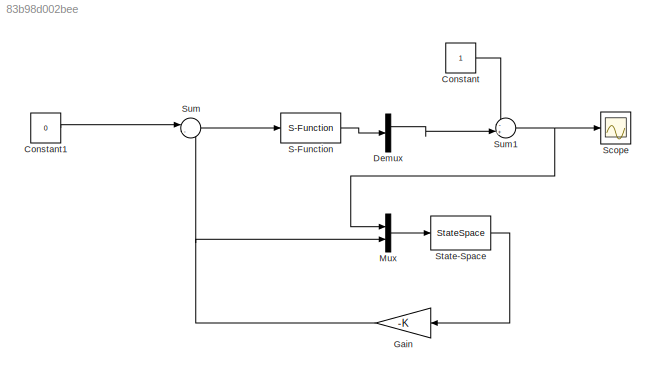
MODEL slx_83b98d002bee
KIND model
CONFIG AbsTol = auto
CONFIG EnableMultiTasking = off
CONFIG FixedStep = auto
CONFIG MaxStep = auto
CONFIG MinStep = auto
CONFIG RelTol = 1e-3
CONFIG SampleTimeConstraint = Unconstrained
CONFIG SolverName = VariableStepAuto
CONFIG StartTime = 0.0
CONFIG StopTime = 100
BLOCK [Constant] Constant
BLOCK [Constant] Constant1
  Value = 0
BLOCK [Demux] Demux
BLOCK [Gain] Gain
  Gain = -K
  Multiplication = Matrix(K*u)
  NameLocation = top
BLOCK [Mux] Mux
  DisplayOption = bar
  Inputs = 2
BLOCK [S-Function] S-Function
  EnableBusSupport = off
  FunctionName = pendule
  SFcnIsStateOwnerBlock = off
  SFunctionDeploymentMode = off
BLOCK [Scope] Scope
  Floating = off
  NumInputPorts = 1
  ScopeSpecificationString = Simulink.scopes.TimeScopeBlockCfg('CurrentConfiguration', extmgr.ConfigurationSet(extmgr.Configuration('Core','General UI',true),extmgr.Configuration('Core','Source UI',true),extmgr.Configuration('Sources','WiredSimulink',true),extmgr.Configuration('Visuals','Time Domain',true,'SerializedDisplays',{struct('MinYLimReal','-16.10942','MaxYLimReal','22.02927','YLabelReal','','MinYLimMag','0.00000','Ma...<+1401ch>
BLOCK [StateSpace] State-Space
  A = A-L*Cksi
  B = [L B]
  C = eye(4)
  D = zeros(4, 2)
  InitialCondition = transpose([2, 10*pi/180, 0, 0]) - transpose([1, 0, 0, 0])
BLOCK [Sum] Sum
  Inputs = |-+
BLOCK [Sum] Sum1
  Inputs = -+|
LINE Constant1:1 -> Sum:1
LINE Constant:1 -> Sum1:1
LINE Demux:1 -> Sum1:2
NET Gain:1 -> Mux:2, Sum:2
LINE Mux:1 -> State-Space:1
LINE S-Function:1 -> Demux:1
LINE State-Space:1 -> Gain:1
NET Sum1:1 -> Mux:1, Scope:1
LINE Sum:1 -> S-Function:1
note: NET lines group one-source signal fan-out (src -> all destinations, sorted); 1:1 wires keep LINE
